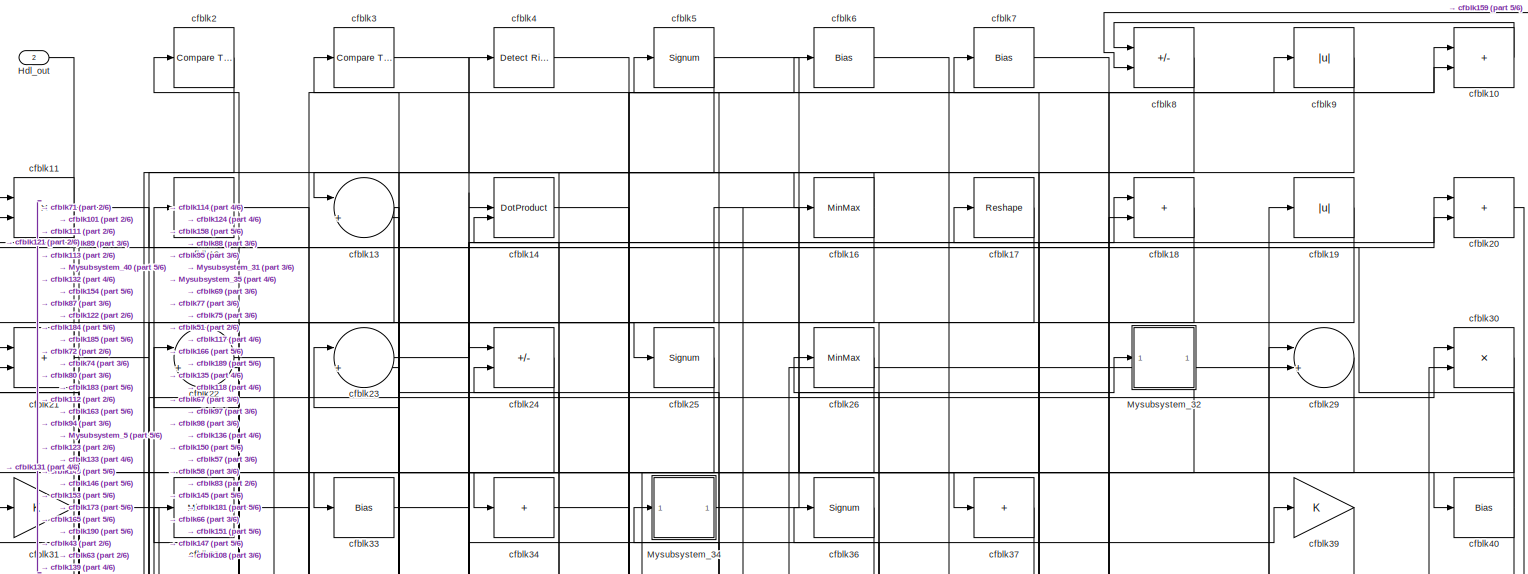
[diagram: root canvas - part 1/6, full width, top band]
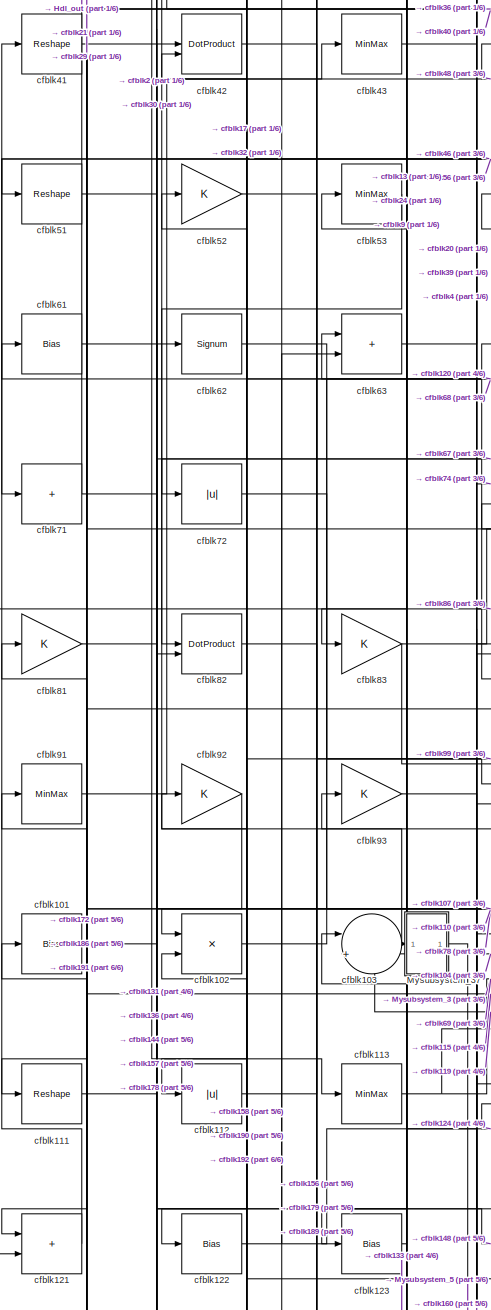
[diagram: root canvas - part 2/6, middle left region]
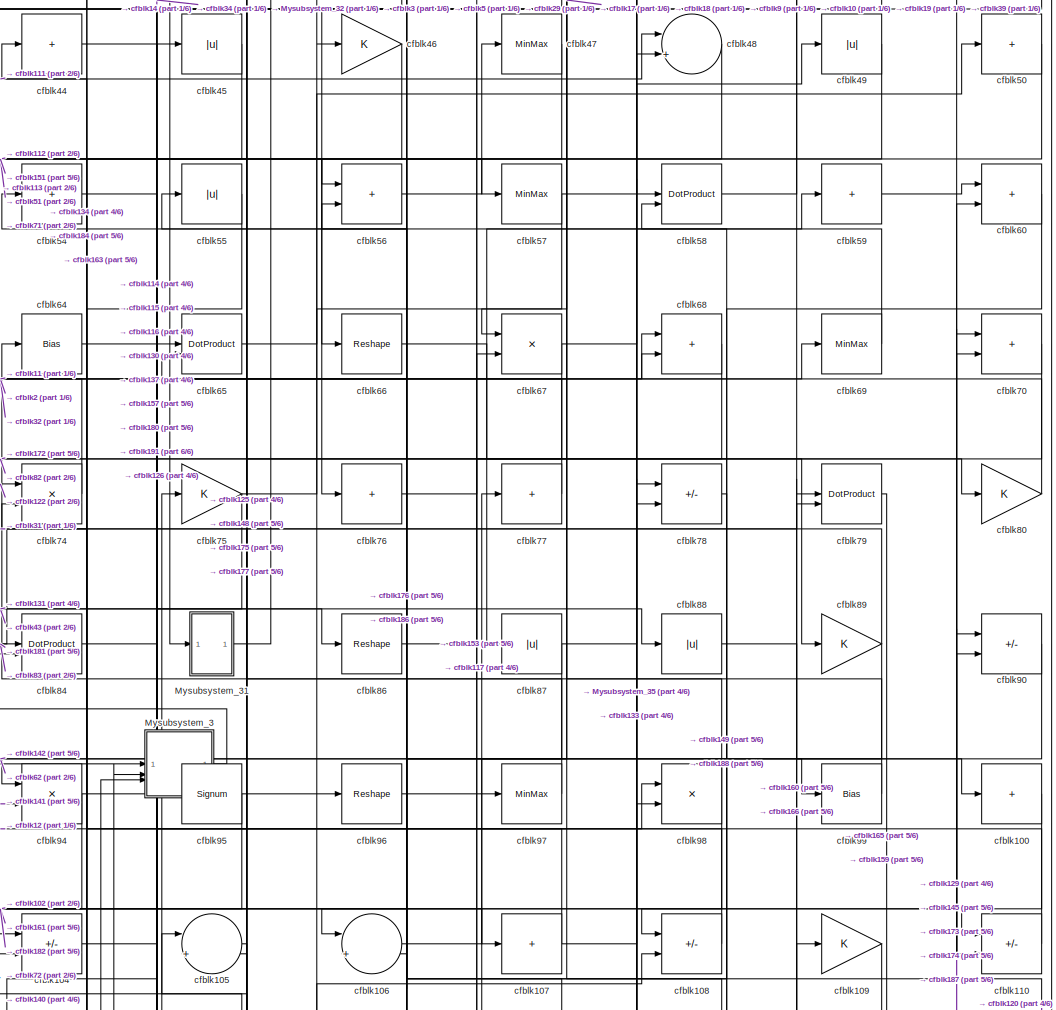
[diagram: root canvas - part 3/6, central region]
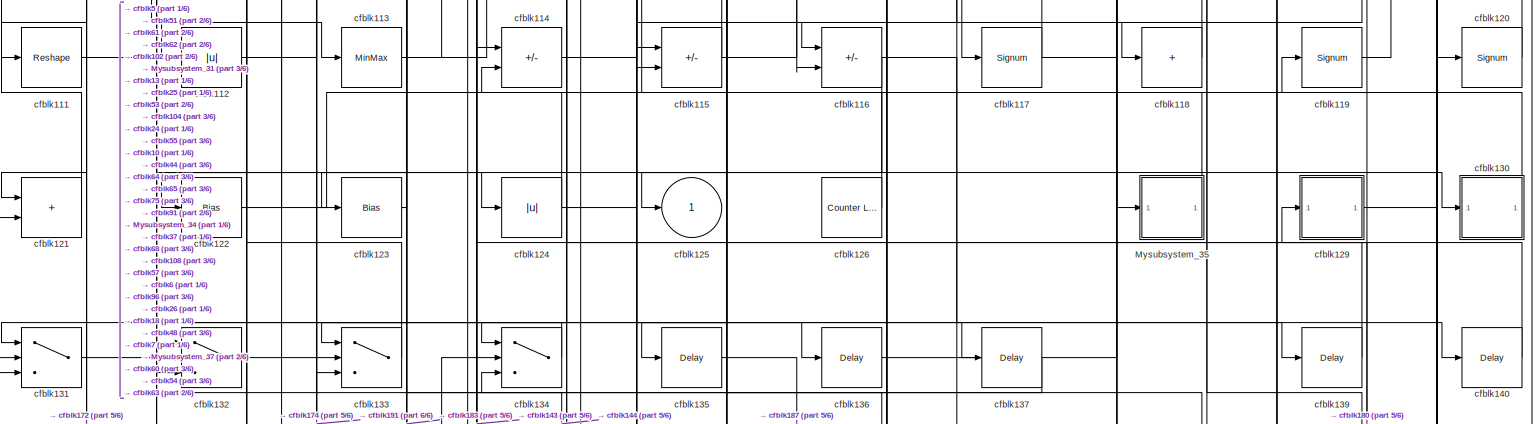
[diagram: root canvas - part 4/6, full width, middle band]
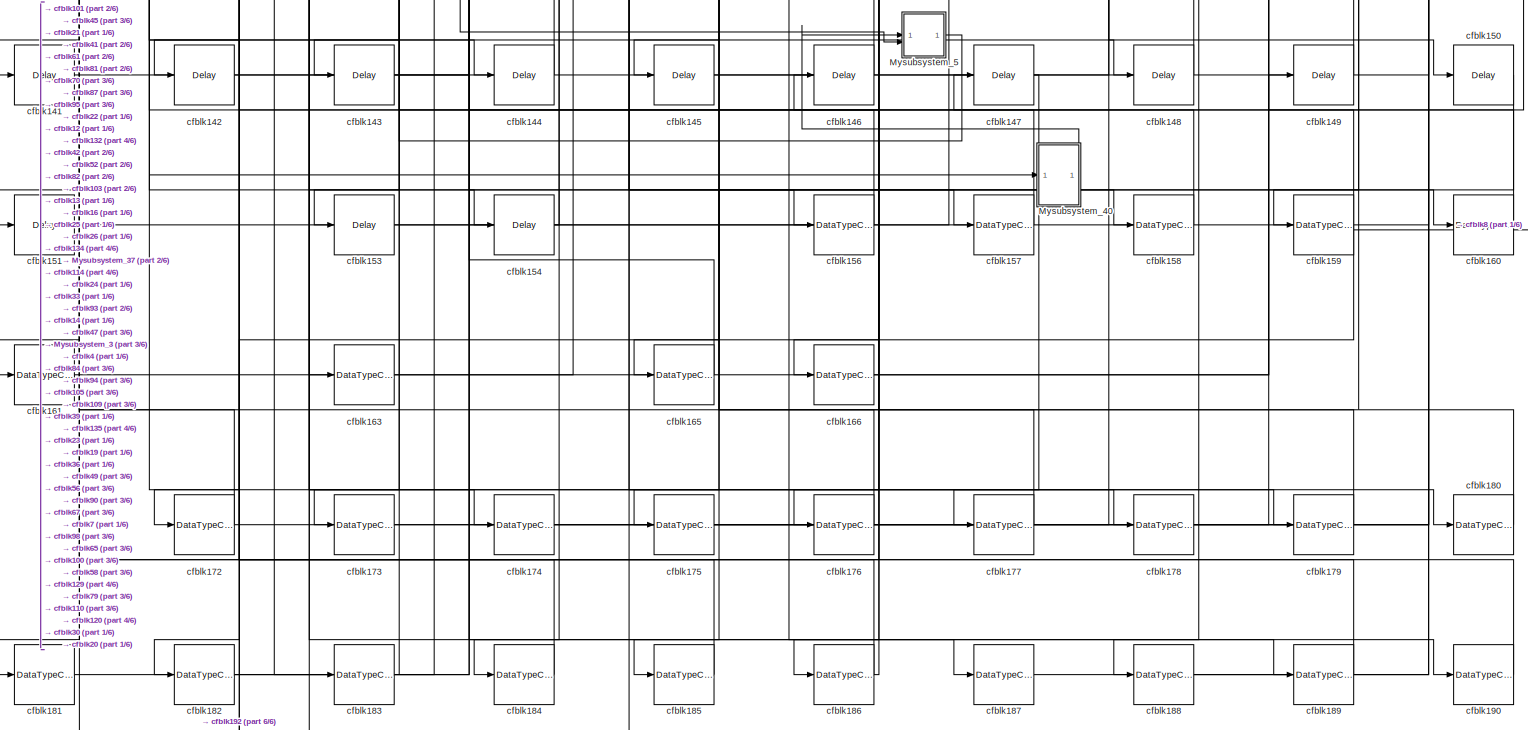
[diagram: root canvas - part 5/6, full width, bottom band]
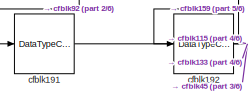
[diagram: root canvas - part 6/6, bottom left region]
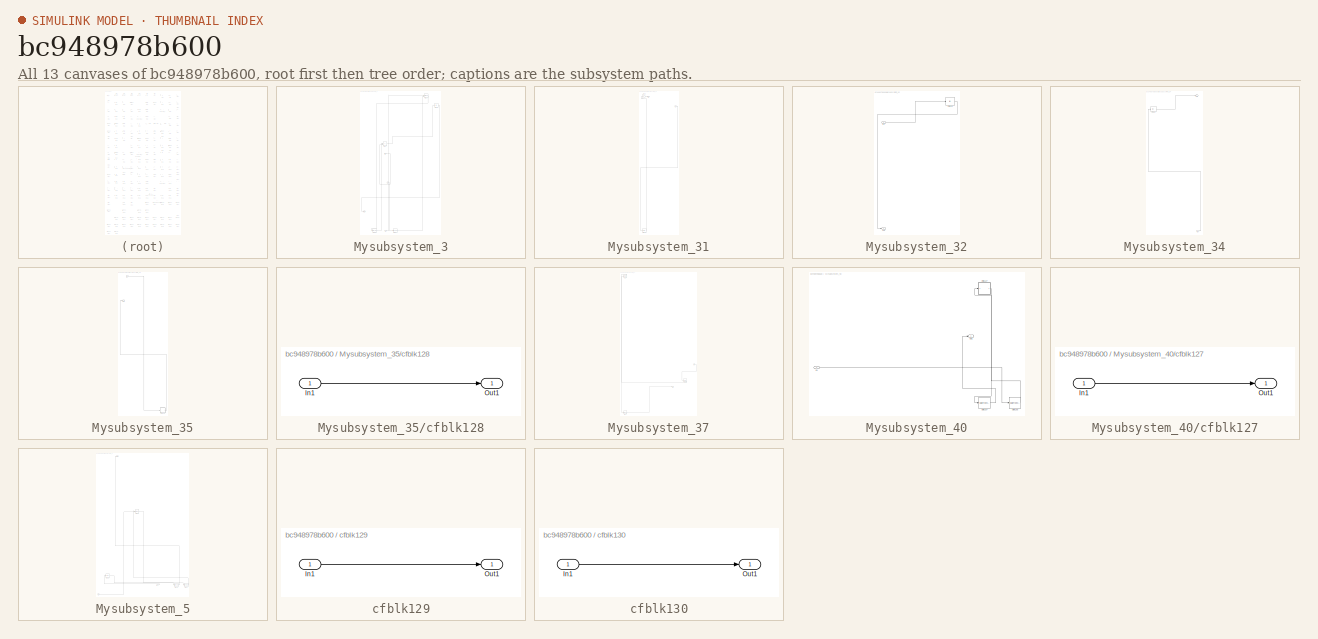
[diagram: thumbnail index - all 13 canvases of the model, root first then tree order]
MODEL slx_bc948978b600
KIND model
CONFIG AbsTol = auto
CONFIG EnableMultiTasking = off
CONFIG FixedStep = auto
CONFIG MaxStep = auto
CONFIG MinStep = auto
CONFIG RelTol = 1e-3
CONFIG SampleTimeConstraint = Unconstrained
CONFIG SolverName = VariableStepAuto
CONFIG StartTime = 0.0
CONFIG StopTime = 10.0
BLOCK [Outport] Hdl_out
  OutDataTypeStr = uint8
  Port = 2
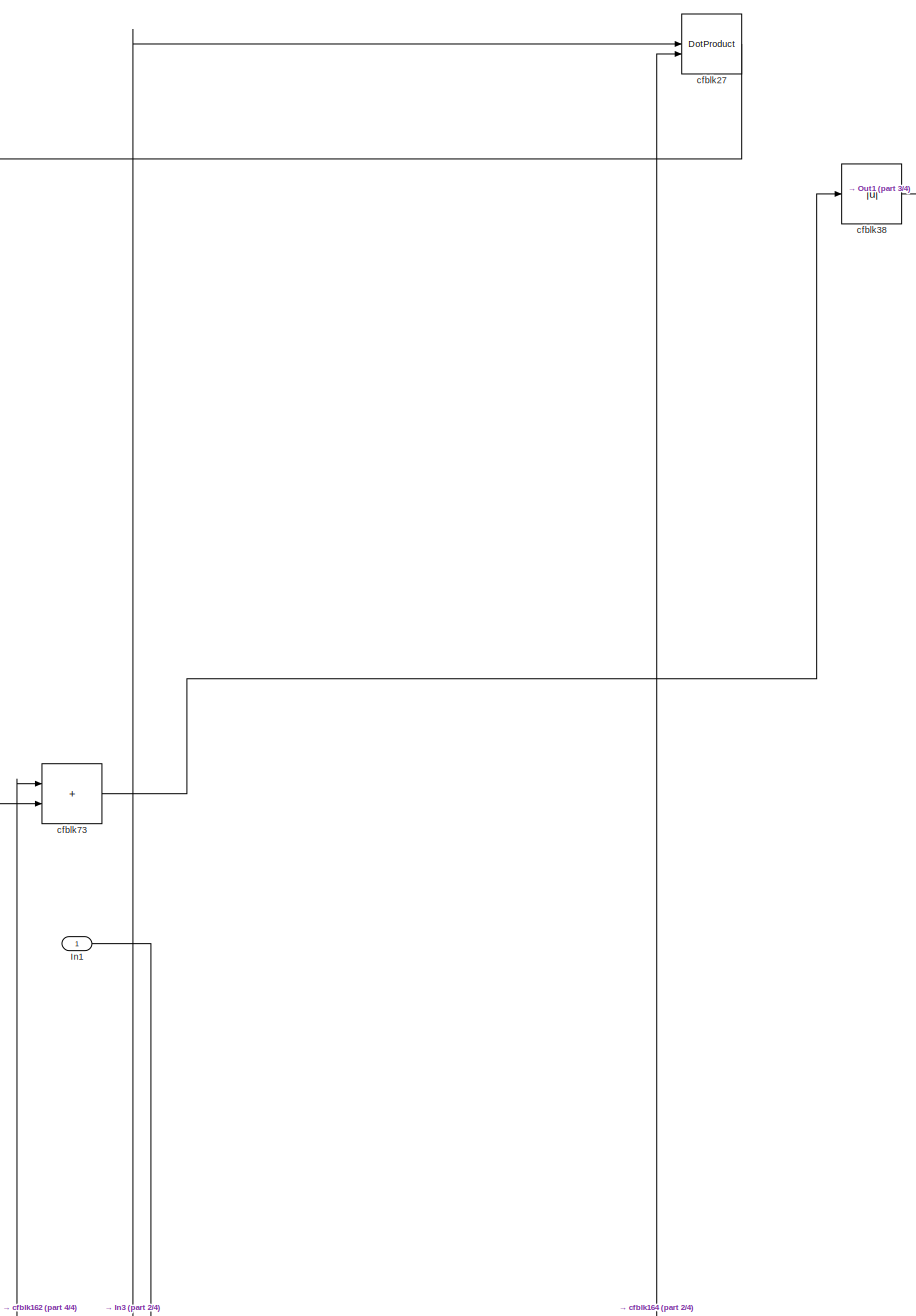
[diagram: Mysubsystem_3 - part 1/4, full width, top band]
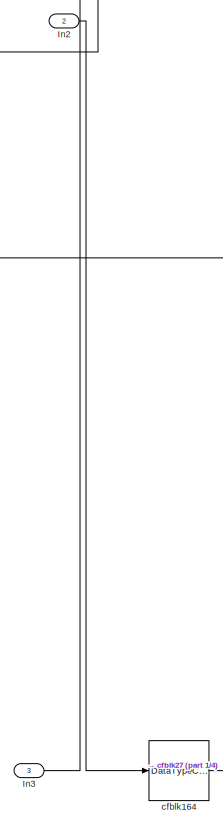
[diagram: Mysubsystem_3 - part 2/4, bottom center region]
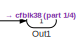
[diagram: Mysubsystem_3 - part 3/4, bottom left region]
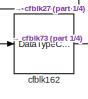
[diagram: Mysubsystem_3 - part 4/4, bottom left region]
BLOCK [SubSystem] Mysubsystem_3
  RTWFcnName = Mysubsystem_3
  RTWFcnNameOpts = User specified
  RTWFileNameOpts = Use function name
  RTWSystemCode = Reusable function
  TreatAsAtomicUnit = on
BLOCK [Inport] Mysubsystem_3/In1
BLOCK [Inport] Mysubsystem_3/In2
  Port = 2
BLOCK [Inport] Mysubsystem_3/In3
  Port = 3
BLOCK [Outport] Mysubsystem_3/Out1
BLOCK [DataTypeConversion] Mysubsystem_3/cfblk162
  OutDataTypeStr = uint8
  RndMeth = Floor
  SaturateOnIntegerOverflow = off
BLOCK [DataTypeConversion] Mysubsystem_3/cfblk164
  OutDataTypeStr = uint8
  RndMeth = Floor
  SaturateOnIntegerOverflow = off
BLOCK [DotProduct] Mysubsystem_3/cfblk27
  OutDataTypeStr = Inherit: Inherit via internal rule
BLOCK [Abs] Mysubsystem_3/cfblk38
  SaturateOnIntegerOverflow = off
BLOCK [Sum] Mysubsystem_3/cfblk73
  IconShape = rectangular
BLOCK [SubSystem] Mysubsystem_31
  RTWFcnName = Mysubsystem_31
  RTWFcnNameOpts = User specified
  RTWFileNameOpts = Use function name
  RTWSystemCode = Reusable function
  TreatAsAtomicUnit = on
BLOCK [Inport] Mysubsystem_31/In1
BLOCK [Outport] Mysubsystem_31/Out1
BLOCK [Gain] Mysubsystem_31/cfblk15
BLOCK [Delay] Mysubsystem_31/cfblk155
  InputPortMap = u0
  SampleTime = 1
BLOCK [SubSystem] Mysubsystem_32
  RTWFcnName = Mysubsystem_32
  RTWFcnNameOpts = User specified
  RTWFileNameOpts = Use function name
  RTWSystemCode = Reusable function
  TreatAsAtomicUnit = on
BLOCK [Inport] Mysubsystem_32/In1
BLOCK [Outport] Mysubsystem_32/Out1
BLOCK [Abs] Mysubsystem_32/cfblk28
  SaturateOnIntegerOverflow = off
BLOCK [SubSystem] Mysubsystem_34
  RTWFcnName = Mysubsystem_34
  RTWFcnNameOpts = User specified
  RTWFileNameOpts = Use function name
  RTWSystemCode = Reusable function
  TreatAsAtomicUnit = on
BLOCK [Inport] Mysubsystem_34/In1
BLOCK [Outport] Mysubsystem_34/Out1
BLOCK [Abs] Mysubsystem_34/cfblk35
  SaturateOnIntegerOverflow = off
BLOCK [SubSystem] Mysubsystem_35
  RTWFcnName = Mysubsystem_35
  RTWFcnNameOpts = User specified
  RTWFileNameOpts = Use function name
  RTWSystemCode = Reusable function
  TreatAsAtomicUnit = on
BLOCK [Inport] Mysubsystem_35/In1
BLOCK [Outport] Mysubsystem_35/Out1
BLOCK [SubSystem] Mysubsystem_35/cfblk128
  LibrarySourceBlock = hdlsllib/Ports &\nSubsystems/Subsystem
BLOCK [Inport] Mysubsystem_35/cfblk128/In1
BLOCK [Outport] Mysubsystem_35/cfblk128/Out1
BLOCK [SubSystem] Mysubsystem_37
  RTWFcnName = Mysubsystem_37
  RTWFcnNameOpts = User specified
  RTWFileNameOpts = Use function name
  RTWSystemCode = Reusable function
  TreatAsAtomicUnit = on
BLOCK [Inport] Mysubsystem_37/In1
BLOCK [Outport] Mysubsystem_37/Out1
BLOCK [Reference] Mysubsystem_37/cfblk1  REF=hdlsllib/Logic and Bit
Operations/Compare
To Zero
  SourceBlock = hdlsllib/Logic and Bit\nOperations/Compare\nTo Zero
  SourceType = Compare To Zero
BLOCK [Delay] Mysubsystem_37/cfblk138
  InputPortMap = u0
  SampleTime = 1
BLOCK [DataTypeConversion] Mysubsystem_37/cfblk171
  OutDataTypeStr = uint8
  RndMeth = Floor
  SaturateOnIntegerOverflow = off
BLOCK [SubSystem] Mysubsystem_40
  RTWFcnName = Mysubsystem_40
  RTWFcnNameOpts = User specified
  RTWFileNameOpts = Use function name
  RTWSystemCode = Reusable function
  TreatAsAtomicUnit = on
BLOCK [Inport] Mysubsystem_40/In1
BLOCK [Outport] Mysubsystem_40/Out1
BLOCK [SubSystem] Mysubsystem_40/cfblk127
  LibrarySourceBlock = hdlsllib/Ports &\nSubsystems/Subsystem
BLOCK [Inport] Mysubsystem_40/cfblk127/In1
BLOCK [Outport] Mysubsystem_40/cfblk127/Out1
BLOCK [DataTypeConversion] Mysubsystem_40/cfblk167
  OutDataTypeStr = uint8
  RndMeth = Floor
  SaturateOnIntegerOverflow = off
BLOCK [DataTypeConversion] Mysubsystem_40/cfblk168
  OutDataTypeStr = uint8
  RndMeth = Floor
  SaturateOnIntegerOverflow = off
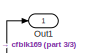
[diagram: Mysubsystem_5 - part 1/3, top left region]
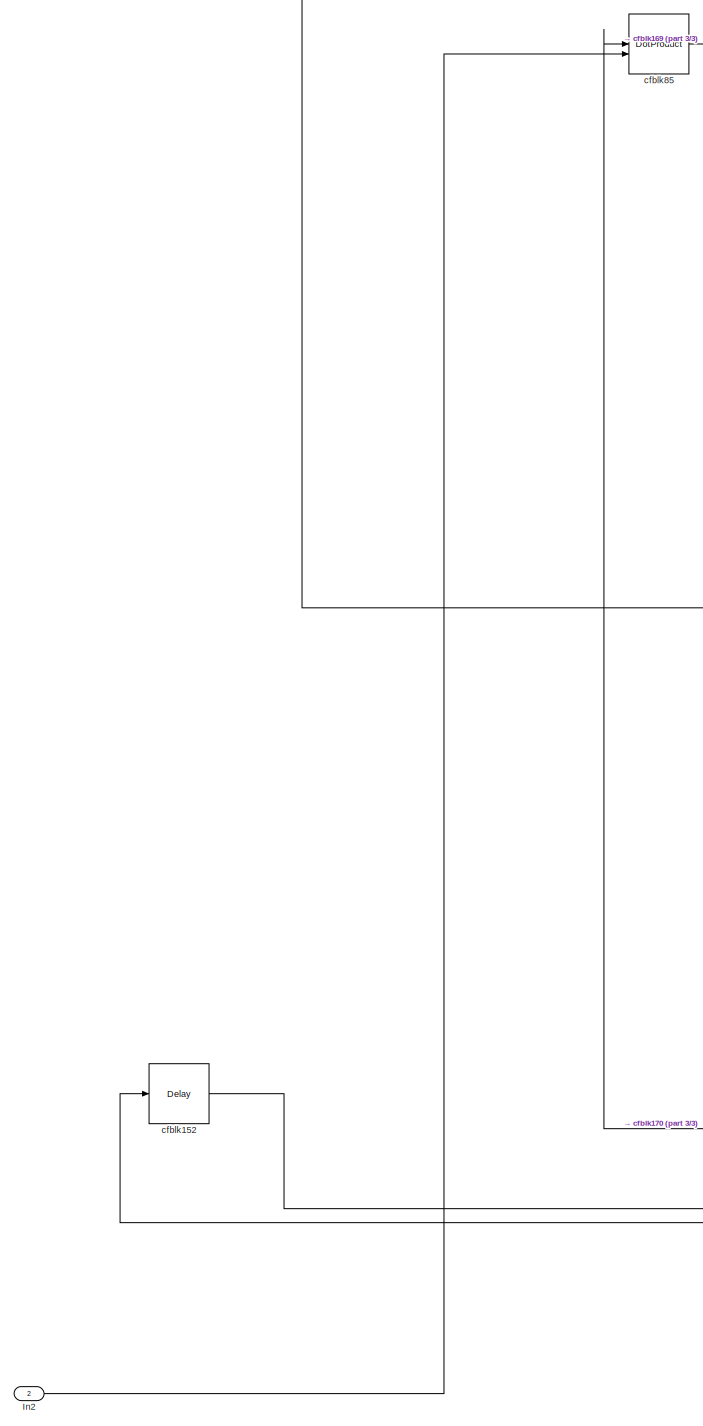
[diagram: Mysubsystem_5 - part 2/3, bottom left region]
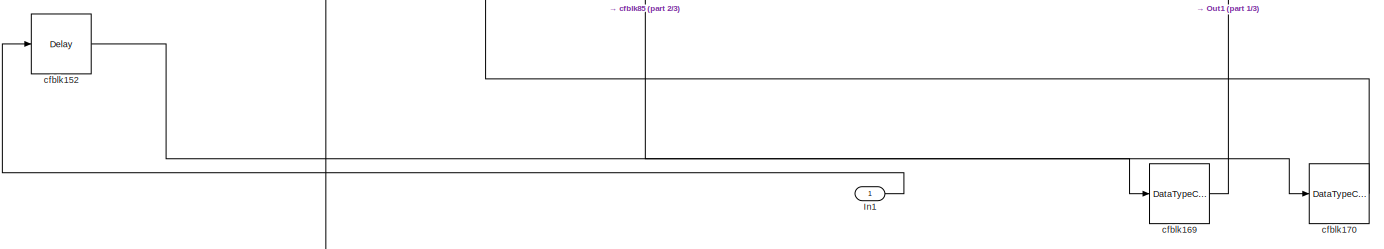
[diagram: Mysubsystem_5 - part 3/3, full width, bottom band]
BLOCK [SubSystem] Mysubsystem_5
  RTWFcnName = Mysubsystem_5
  RTWFcnNameOpts = User specified
  RTWFileNameOpts = Use function name
  RTWSystemCode = Reusable function
  TreatAsAtomicUnit = on
BLOCK [Inport] Mysubsystem_5/In1
BLOCK [Inport] Mysubsystem_5/In2
  Port = 2
BLOCK [Outport] Mysubsystem_5/Out1
BLOCK [Delay] Mysubsystem_5/cfblk152
  InputPortMap = u0
  SampleTime = 1
BLOCK [DataTypeConversion] Mysubsystem_5/cfblk169
  OutDataTypeStr = uint8
  RndMeth = Floor
  SaturateOnIntegerOverflow = off
BLOCK [DataTypeConversion] Mysubsystem_5/cfblk170
  OutDataTypeStr = uint8
  RndMeth = Floor
  SaturateOnIntegerOverflow = off
BLOCK [DotProduct] Mysubsystem_5/cfblk85
  OutDataTypeStr = Inherit: Inherit via internal rule
BLOCK [Sum] cfblk10
  IconShape = rectangular
  OutDataTypeStr = uint8
BLOCK [Sum] cfblk100
  IconShape = rectangular
  Inputs = +
  OutDataTypeStr = uint8
BLOCK [Bias] cfblk101
  Bias = 0.0
  SaturateOnIntegerOverflow = off
BLOCK [Product] cfblk102
  Inputs = */
  OutDataTypeStr = uint8
  RndMeth = Zero
  SaturateOnIntegerOverflow = on
BLOCK [Sum] cfblk103
  Inputs = |++
  OutDataTypeStr = uint8
BLOCK [Sum] cfblk104
  IconShape = rectangular
  Inputs = +-
  OutDataTypeStr = uint8
BLOCK [Sum] cfblk105
  Inputs = |++
  OutDataTypeStr = uint8
BLOCK [Sum] cfblk106
  Inputs = |++
  OutDataTypeStr = uint8
BLOCK [Sum] cfblk107
  IconShape = rectangular
  Inputs = +
  OutDataTypeStr = uint8
BLOCK [Sum] cfblk108
  IconShape = rectangular
  Inputs = +-
  OutDataTypeStr = uint8
BLOCK [Gain] cfblk109
  OutDataTypeStr = uint8
BLOCK [Product] cfblk11
  Inputs = */
  OutDataTypeStr = uint8
  RndMeth = Zero
  SaturateOnIntegerOverflow = on
BLOCK [Sum] cfblk110
  IconShape = rectangular
  Inputs = +-
  OutDataTypeStr = uint8
BLOCK [Reshape] cfblk111
BLOCK [Abs] cfblk112
  OutDataTypeStr = uint8
  SaturateOnIntegerOverflow = off
BLOCK [MinMax] cfblk113
  OutDataTypeStr = uint8
BLOCK [Sum] cfblk114
  IconShape = rectangular
  Inputs = +-
  OutDataTypeStr = uint8
BLOCK [Sum] cfblk115
  IconShape = rectangular
  Inputs = +-
  OutDataTypeStr = uint8
BLOCK [Sum] cfblk116
  IconShape = rectangular
  Inputs = +-
  OutDataTypeStr = uint8
BLOCK [Signum] cfblk117
BLOCK [Sum] cfblk118
  IconShape = rectangular
  Inputs = +
  OutDataTypeStr = uint8
BLOCK [Signum] cfblk119
BLOCK [Bias] cfblk12
  Bias = 0.0
  SaturateOnIntegerOverflow = off
BLOCK [Signum] cfblk120
BLOCK [Sum] cfblk121
  IconShape = rectangular
  OutDataTypeStr = uint8
BLOCK [Bias] cfblk122
  Bias = 0.0
  SaturateOnIntegerOverflow = off
BLOCK [Bias] cfblk123
  Bias = 0.0
  SaturateOnIntegerOverflow = off
BLOCK [Abs] cfblk124
  OutDataTypeStr = uint8
  SaturateOnIntegerOverflow = off
BLOCK [Outport] cfblk125
  OutDataTypeStr = uint8
  VectorParamsAs1DForOutWhenUnconnected = off
BLOCK [Reference] cfblk126  REF=hdlsllib/Sources/Counter
Limited
  SourceBlock = hdlsllib/Sources/Counter\nLimited
  SourceType = Counter Limited
BLOCK [SubSystem] cfblk129
  LibrarySourceBlock = hdlsllib/Ports &\nSubsystems/Subsystem
BLOCK [Inport] cfblk129/In1
BLOCK [Outport] cfblk129/Out1
BLOCK [Sum] cfblk13
  Inputs = |++
  OutDataTypeStr = uint8
BLOCK [SubSystem] cfblk130
  LibrarySourceBlock = hdlsllib/Ports &\nSubsystems/Subsystem
BLOCK [Inport] cfblk130/In1
BLOCK [Outport] cfblk130/Out1
BLOCK [Switch] cfblk131
  InputSameDT = off
  OutDataTypeStr = uint8
  SaturateOnIntegerOverflow = off
BLOCK [Switch] cfblk132
  InputSameDT = off
  OutDataTypeStr = uint8
  SaturateOnIntegerOverflow = off
BLOCK [Switch] cfblk133
  InputSameDT = off
  OutDataTypeStr = uint8
  SaturateOnIntegerOverflow = off
BLOCK [Switch] cfblk134
  InputSameDT = off
  OutDataTypeStr = uint8
  SaturateOnIntegerOverflow = off
BLOCK [Delay] cfblk135
  InputPortMap = u0
  SampleTime = 1
BLOCK [Delay] cfblk136
  InputPortMap = u0
  SampleTime = 1
BLOCK [Delay] cfblk137
  InputPortMap = u0
  SampleTime = 1
BLOCK [Delay] cfblk139
  InputPortMap = u0
  SampleTime = 1
BLOCK [DotProduct] cfblk14
  OutDataTypeStr = uint8
BLOCK [Delay] cfblk140
  InputPortMap = u0
  SampleTime = 1
BLOCK [Delay] cfblk141
  InputPortMap = u0
  SampleTime = 1
BLOCK [Delay] cfblk142
  InputPortMap = u0
  SampleTime = 1
BLOCK [Delay] cfblk143
  InputPortMap = u0
  SampleTime = 1
BLOCK [Delay] cfblk144
  InputPortMap = u0
  SampleTime = 1
BLOCK [Delay] cfblk145
  InputPortMap = u0
  SampleTime = 1
BLOCK [Delay] cfblk146
  InputPortMap = u0
  SampleTime = 1
BLOCK [Delay] cfblk147
  InputPortMap = u0
  SampleTime = 1
BLOCK [Delay] cfblk148
  InputPortMap = u0
  SampleTime = 1
BLOCK [Delay] cfblk149
  InputPortMap = u0
  SampleTime = 1
BLOCK [Delay] cfblk150
  InputPortMap = u0
  SampleTime = 1
BLOCK [Delay] cfblk151
  InputPortMap = u0
  SampleTime = 1
BLOCK [Delay] cfblk153
  InputPortMap = u0
  SampleTime = 1
BLOCK [Delay] cfblk154
  InputPortMap = u0
  SampleTime = 1
BLOCK [DataTypeConversion] cfblk156
  OutDataTypeStr = uint8
  RndMeth = Floor
  SaturateOnIntegerOverflow = off
BLOCK [DataTypeConversion] cfblk157
  OutDataTypeStr = uint8
  RndMeth = Floor
  SaturateOnIntegerOverflow = off
BLOCK [DataTypeConversion] cfblk158
  OutDataTypeStr = uint8
  RndMeth = Floor
  SaturateOnIntegerOverflow = off
BLOCK [DataTypeConversion] cfblk159
  OutDataTypeStr = uint8
  RndMeth = Floor
  SaturateOnIntegerOverflow = off
BLOCK [MinMax] cfblk16
  OutDataTypeStr = uint8
BLOCK [DataTypeConversion] cfblk160
  OutDataTypeStr = uint8
  RndMeth = Floor
  SaturateOnIntegerOverflow = off
BLOCK [DataTypeConversion] cfblk161
  OutDataTypeStr = uint8
  RndMeth = Floor
  SaturateOnIntegerOverflow = off
BLOCK [DataTypeConversion] cfblk163
  OutDataTypeStr = uint8
  RndMeth = Floor
  SaturateOnIntegerOverflow = off
BLOCK [DataTypeConversion] cfblk165
  OutDataTypeStr = uint8
  RndMeth = Floor
  SaturateOnIntegerOverflow = off
BLOCK [DataTypeConversion] cfblk166
  OutDataTypeStr = uint8
  RndMeth = Floor
  SaturateOnIntegerOverflow = off
BLOCK [Reshape] cfblk17
BLOCK [DataTypeConversion] cfblk172
  OutDataTypeStr = uint8
  RndMeth = Floor
  SaturateOnIntegerOverflow = off
BLOCK [DataTypeConversion] cfblk173
  OutDataTypeStr = uint8
  RndMeth = Floor
  SaturateOnIntegerOverflow = off
BLOCK [DataTypeConversion] cfblk174
  OutDataTypeStr = uint8
  RndMeth = Floor
  SaturateOnIntegerOverflow = off
BLOCK [DataTypeConversion] cfblk175
  OutDataTypeStr = uint8
  RndMeth = Floor
  SaturateOnIntegerOverflow = off
BLOCK [DataTypeConversion] cfblk176
  OutDataTypeStr = uint8
  RndMeth = Floor
  SaturateOnIntegerOverflow = off
BLOCK [DataTypeConversion] cfblk177
  OutDataTypeStr = uint8
  RndMeth = Floor
  SaturateOnIntegerOverflow = off
BLOCK [DataTypeConversion] cfblk178
  OutDataTypeStr = uint8
  RndMeth = Floor
  SaturateOnIntegerOverflow = off
BLOCK [DataTypeConversion] cfblk179
  OutDataTypeStr = uint8
  RndMeth = Floor
  SaturateOnIntegerOverflow = off
BLOCK [Sum] cfblk18
  IconShape = rectangular
  OutDataTypeStr = uint8
BLOCK [DataTypeConversion] cfblk180
  OutDataTypeStr = uint8
  RndMeth = Floor
  SaturateOnIntegerOverflow = off
BLOCK [DataTypeConversion] cfblk181
  OutDataTypeStr = uint8
  RndMeth = Floor
  SaturateOnIntegerOverflow = off
BLOCK [DataTypeConversion] cfblk182
  OutDataTypeStr = uint8
  RndMeth = Floor
  SaturateOnIntegerOverflow = off
BLOCK [DataTypeConversion] cfblk183
  OutDataTypeStr = uint8
  RndMeth = Floor
  SaturateOnIntegerOverflow = off
BLOCK [DataTypeConversion] cfblk184
  OutDataTypeStr = uint8
  RndMeth = Floor
  SaturateOnIntegerOverflow = off
BLOCK [DataTypeConversion] cfblk185
  OutDataTypeStr = uint8
  RndMeth = Floor
  SaturateOnIntegerOverflow = off
BLOCK [DataTypeConversion] cfblk186
  OutDataTypeStr = uint8
  RndMeth = Floor
  SaturateOnIntegerOverflow = off
BLOCK [DataTypeConversion] cfblk187
  OutDataTypeStr = uint8
  RndMeth = Floor
  SaturateOnIntegerOverflow = off
BLOCK [DataTypeConversion] cfblk188
  OutDataTypeStr = uint8
  RndMeth = Floor
  SaturateOnIntegerOverflow = off
BLOCK [DataTypeConversion] cfblk189
  OutDataTypeStr = uint8
  RndMeth = Floor
  SaturateOnIntegerOverflow = off
BLOCK [Abs] cfblk19
  OutDataTypeStr = uint8
  SaturateOnIntegerOverflow = off
BLOCK [DataTypeConversion] cfblk190
  OutDataTypeStr = uint8
  RndMeth = Floor
  SaturateOnIntegerOverflow = off
BLOCK [DataTypeConversion] cfblk191
  OutDataTypeStr = uint8
  RndMeth = Floor
  SaturateOnIntegerOverflow = off
BLOCK [DataTypeConversion] cfblk192
  OutDataTypeStr = uint8
  RndMeth = Floor
  SaturateOnIntegerOverflow = off
BLOCK [Reference] cfblk2  REF=hdlsllib/Logic and Bit
Operations/Compare
To Zero
  SourceBlock = hdlsllib/Logic and Bit\nOperations/Compare\nTo Zero
  SourceType = Compare To Zero
BLOCK [Sum] cfblk20
  IconShape = rectangular
  OutDataTypeStr = uint8
BLOCK [Sum] cfblk21
  IconShape = rectangular
  OutDataTypeStr = uint8
BLOCK [Sum] cfblk22
  Inputs = |++
  OutDataTypeStr = uint8
BLOCK [Sum] cfblk23
  Inputs = |++
  OutDataTypeStr = uint8
BLOCK [Sum] cfblk24
  IconShape = rectangular
  Inputs = +-
  OutDataTypeStr = uint8
BLOCK [Signum] cfblk25
BLOCK [MinMax] cfblk26
  OutDataTypeStr = uint8
BLOCK [Sum] cfblk29
  Inputs = |++
  OutDataTypeStr = uint8
BLOCK [Reference] cfblk3  REF=hdlsllib/Logic and Bit
Operations/Compare
To Zero
  SourceBlock = hdlsllib/Logic and Bit\nOperations/Compare\nTo Zero
  SourceType = Compare To Zero
BLOCK [Product] cfblk30
  Inputs = */
  OutDataTypeStr = uint8
  RndMeth = Zero
  SaturateOnIntegerOverflow = on
BLOCK [Gain] cfblk31
  OutDataTypeStr = uint8
BLOCK [MinMax] cfblk32
  OutDataTypeStr = uint8
BLOCK [Bias] cfblk33
  Bias = 0.0
  SaturateOnIntegerOverflow = off
BLOCK [Sum] cfblk34
  IconShape = rectangular
  Inputs = +
  OutDataTypeStr = uint8
BLOCK [Signum] cfblk36
BLOCK [Sum] cfblk37
  IconShape = rectangular
  Inputs = +
  OutDataTypeStr = uint8
BLOCK [Gain] cfblk39
  OutDataTypeStr = uint8
BLOCK [Reference] cfblk4  REF=hdlsllib/Logic and Bit
Operations/Detect Rise
Positive
  SourceBlock = hdlsllib/Logic and Bit\nOperations/Detect Rise\nPositive
  SourceType = Detect Rise Positive
BLOCK [Bias] cfblk40
  Bias = 0.0
  SaturateOnIntegerOverflow = off
BLOCK [Reshape] cfblk41
BLOCK [DotProduct] cfblk42
  OutDataTypeStr = uint8
BLOCK [MinMax] cfblk43
  OutDataTypeStr = uint8
BLOCK [Sum] cfblk44
  IconShape = rectangular
  Inputs = +
  OutDataTypeStr = uint8
BLOCK [Abs] cfblk45
  OutDataTypeStr = uint8
  SaturateOnIntegerOverflow = off
BLOCK [Gain] cfblk46
  OutDataTypeStr = uint8
BLOCK [MinMax] cfblk47
  OutDataTypeStr = uint8
BLOCK [Sum] cfblk48
  Inputs = |++
  OutDataTypeStr = uint8
BLOCK [Abs] cfblk49
  OutDataTypeStr = uint8
  SaturateOnIntegerOverflow = off
BLOCK [Signum] cfblk5
BLOCK [Sum] cfblk50
  IconShape = rectangular
  Inputs = +
  OutDataTypeStr = uint8
BLOCK [Reshape] cfblk51
BLOCK [Gain] cfblk52
  OutDataTypeStr = uint8
BLOCK [MinMax] cfblk53
  OutDataTypeStr = uint8
BLOCK [Sum] cfblk54
  IconShape = rectangular
  Inputs = +
  OutDataTypeStr = uint8
BLOCK [Abs] cfblk55
  OutDataTypeStr = uint8
  SaturateOnIntegerOverflow = off
BLOCK [Sum] cfblk56
  IconShape = rectangular
  OutDataTypeStr = uint8
BLOCK [MinMax] cfblk57
  OutDataTypeStr = uint8
BLOCK [DotProduct] cfblk58
  OutDataTypeStr = uint8
BLOCK [Sum] cfblk59
  IconShape = rectangular
  Inputs = +
  OutDataTypeStr = uint8
BLOCK [Bias] cfblk6
  Bias = 0.0
  SaturateOnIntegerOverflow = off
BLOCK [Sum] cfblk60
  IconShape = rectangular
  OutDataTypeStr = uint8
BLOCK [Bias] cfblk61
  Bias = 0.0
  SaturateOnIntegerOverflow = off
BLOCK [Signum] cfblk62
BLOCK [Sum] cfblk63
  IconShape = rectangular
  OutDataTypeStr = uint8
BLOCK [Bias] cfblk64
  Bias = 0.0
  SaturateOnIntegerOverflow = off
BLOCK [DotProduct] cfblk65
  OutDataTypeStr = uint8
BLOCK [Reshape] cfblk66
BLOCK [Product] cfblk67
  Inputs = */
  OutDataTypeStr = uint8
  RndMeth = Zero
  SaturateOnIntegerOverflow = on
BLOCK [Sum] cfblk68
  IconShape = rectangular
  OutDataTypeStr = uint8
BLOCK [MinMax] cfblk69
  OutDataTypeStr = uint8
BLOCK [Bias] cfblk7
  Bias = 0.0
  SaturateOnIntegerOverflow = off
BLOCK [Sum] cfblk70
  IconShape = rectangular
  OutDataTypeStr = uint8
BLOCK [Sum] cfblk71
  IconShape = rectangular
  Inputs = +
  OutDataTypeStr = uint8
BLOCK [Abs] cfblk72
  OutDataTypeStr = uint8
  SaturateOnIntegerOverflow = off
BLOCK [Product] cfblk74
  Inputs = */
  OutDataTypeStr = uint8
  RndMeth = Zero
  SaturateOnIntegerOverflow = on
BLOCK [Gain] cfblk75
  OutDataTypeStr = uint8
BLOCK [Sum] cfblk76
  IconShape = rectangular
  Inputs = +
  OutDataTypeStr = uint8
BLOCK [Sum] cfblk77
  IconShape = rectangular
  Inputs = +
  OutDataTypeStr = uint8
BLOCK [Sum] cfblk78
  IconShape = rectangular
  Inputs = +-
  OutDataTypeStr = uint8
BLOCK [DotProduct] cfblk79
  OutDataTypeStr = uint8
BLOCK [Sum] cfblk8
  IconShape = rectangular
  Inputs = +-
  OutDataTypeStr = uint8
BLOCK [Gain] cfblk80
  OutDataTypeStr = uint8
BLOCK [Gain] cfblk81
  OutDataTypeStr = uint8
BLOCK [DotProduct] cfblk82
  OutDataTypeStr = uint8
BLOCK [Gain] cfblk83
  OutDataTypeStr = uint8
BLOCK [DotProduct] cfblk84
  OutDataTypeStr = uint8
BLOCK [Reshape] cfblk86
BLOCK [Abs] cfblk87
  OutDataTypeStr = uint8
  SaturateOnIntegerOverflow = off
BLOCK [Abs] cfblk88
  OutDataTypeStr = uint8
  SaturateOnIntegerOverflow = off
BLOCK [Gain] cfblk89
  OutDataTypeStr = uint8
BLOCK [Abs] cfblk9
  OutDataTypeStr = uint8
  SaturateOnIntegerOverflow = off
BLOCK [Sum] cfblk90
  IconShape = rectangular
  Inputs = +-
  OutDataTypeStr = uint8
BLOCK [MinMax] cfblk91
  OutDataTypeStr = uint8
BLOCK [Gain] cfblk92
  OutDataTypeStr = uint8
BLOCK [Gain] cfblk93
  OutDataTypeStr = uint8
BLOCK [Product] cfblk94
  Inputs = */
  OutDataTypeStr = uint8
  RndMeth = Zero
  SaturateOnIntegerOverflow = on
BLOCK [Signum] cfblk95
BLOCK [Reshape] cfblk96
BLOCK [MinMax] cfblk97
  OutDataTypeStr = uint8
BLOCK [Product] cfblk98
  Inputs = */
  OutDataTypeStr = uint8
  RndMeth = Zero
  SaturateOnIntegerOverflow = on
BLOCK [Bias] cfblk99
  Bias = 0.0
  SaturateOnIntegerOverflow = off
LINE Mysubsystem_3/In1:1 -> Mysubsystem_3/cfblk73:2
LINE Mysubsystem_3/In2:1 -> Mysubsystem_3/cfblk164:1
LINE Mysubsystem_3/In3:1 -> Mysubsystem_3/cfblk27:1
LINE Mysubsystem_3/cfblk162:1 -> Mysubsystem_3/cfblk73:1
LINE Mysubsystem_3/cfblk164:1 -> Mysubsystem_3/cfblk27:2
LINE Mysubsystem_3/cfblk27:1 -> Mysubsystem_3/cfblk162:1
LINE Mysubsystem_3/cfblk38:1 -> Mysubsystem_3/Out1:1
LINE Mysubsystem_3/cfblk73:1 -> Mysubsystem_3/cfblk38:1
LINE Mysubsystem_31/In1:1 -> Mysubsystem_31/cfblk155:1
LINE Mysubsystem_31/cfblk155:1 -> Mysubsystem_31/cfblk15:1
LINE Mysubsystem_31/cfblk15:1 -> Mysubsystem_31/Out1:1
NET Mysubsystem_31:1 -> Mysubsystem_35:1, cfblk133:2
LINE Mysubsystem_32/In1:1 -> Mysubsystem_32/cfblk28:1
LINE Mysubsystem_32/cfblk28:1 -> Mysubsystem_32/Out1:1
LINE Mysubsystem_32:1 -> Mysubsystem_31:1
LINE Mysubsystem_34/In1:1 -> Mysubsystem_34/cfblk35:1
LINE Mysubsystem_34/cfblk35:1 -> Mysubsystem_34/Out1:1
LINE Mysubsystem_34:1 -> Mysubsystem_32:1
LINE Mysubsystem_35/In1:1 -> Mysubsystem_35/cfblk128:1
LINE Mysubsystem_35/cfblk128/In1:1 -> Mysubsystem_35/cfblk128/Out1:1
LINE Mysubsystem_35/cfblk128:1 -> Mysubsystem_35/Out1:1
LINE Mysubsystem_35:1 -> Mysubsystem_34:1
LINE Mysubsystem_37/In1:1 -> Mysubsystem_37/cfblk138:1
LINE Mysubsystem_37/cfblk138:1 -> Mysubsystem_37/cfblk1:1
LINE Mysubsystem_37/cfblk171:1 -> Mysubsystem_37/Out1:1
LINE Mysubsystem_37/cfblk1:1 -> Mysubsystem_37/cfblk171:1
LINE Mysubsystem_37:1 -> Mysubsystem_5:2
LINE Mysubsystem_3:1 -> cfblk141:1
LINE Mysubsystem_40/In1:1 -> Mysubsystem_40/cfblk168:1
LINE Mysubsystem_40/cfblk127/In1:1 -> Mysubsystem_40/cfblk127/Out1:1
LINE Mysubsystem_40/cfblk127:1 -> Mysubsystem_40/cfblk167:1
LINE Mysubsystem_40/cfblk167:1 -> Mysubsystem_40/Out1:1
LINE Mysubsystem_40/cfblk168:1 -> Mysubsystem_40/cfblk127:1
LINE Mysubsystem_40:1 -> Mysubsystem_5:1
LINE Mysubsystem_5/In1:1 -> Mysubsystem_5/cfblk152:1
LINE Mysubsystem_5/In2:1 -> Mysubsystem_5/cfblk85:2
LINE Mysubsystem_5/cfblk152:1 -> Mysubsystem_5/cfblk170:1
LINE Mysubsystem_5/cfblk169:1 -> Mysubsystem_5/Out1:1
LINE Mysubsystem_5/cfblk170:1 -> Mysubsystem_5/cfblk85:1
LINE Mysubsystem_5/cfblk85:1 -> Mysubsystem_5/cfblk169:1
LINE Mysubsystem_5:1 -> cfblk23:1
LINE cfblk100:1 -> cfblk188:1
NET cfblk101:1 -> cfblk21:1, cfblk30:1
LINE cfblk102:1 -> cfblk68:1
LINE cfblk103:1 -> cfblk93:1
LINE cfblk104:1 -> cfblk98:1
LINE cfblk105:1 -> cfblk175:1
LINE cfblk106:1 -> cfblk77:1
NET cfblk107:1 -> cfblk74:2, cfblk78:1
LINE cfblk108:1 -> cfblk12:1
LINE cfblk109:1 -> cfblk165:1
LINE cfblk10:1 -> cfblk8:1
LINE cfblk110:1 -> cfblk44:1
LINE cfblk111:1 -> cfblk48:1
LINE cfblk112:1 -> cfblk9:1
NET cfblk113:1 -> Mysubsystem_3:2, cfblk69:1
NET cfblk114:1 -> cfblk10:1, cfblk65:1
NET cfblk115:1 -> cfblk108:2, cfblk91:1
NET cfblk116:1 -> cfblk132:2, cfblk139:1
NET cfblk117:1 -> cfblk26:1, cfblk48:2
LINE cfblk118:1 -> cfblk7:1
LINE cfblk119:1 -> Mysubsystem_37:1
LINE cfblk11:1 -> cfblk20:2
NET cfblk120:1 -> cfblk54:1, cfblk63:1
LINE cfblk121:1 -> cfblk41:1
NET cfblk122:1 -> cfblk4:1, cfblk63:2, cfblk74:1
LINE cfblk123:1 -> cfblk103:1
NET cfblk124:1 -> cfblk53:1, cfblk6:1
LINE cfblk126:1 -> cfblk75:1
LINE cfblk129/In1:1 -> cfblk129/Out1:1
LINE cfblk129:1 -> cfblk60:2
LINE cfblk12:1 -> cfblk163:1
LINE cfblk130/In1:1 -> cfblk130/Out1:1
NET cfblk130:1 -> cfblk114:2, cfblk119:1
LINE cfblk131:1 -> cfblk62:1
NET cfblk132:1 -> cfblk140:1, cfblk174:1
LINE cfblk133:1 -> cfblk102:2
LINE cfblk134:1 -> cfblk131:1
LINE cfblk135:1 -> cfblk187:1
LINE cfblk136:1 -> cfblk18:2
LINE cfblk137:1 -> cfblk134:3
LINE cfblk139:1 -> cfblk24:2
NET cfblk13:1 -> cfblk121:2, cfblk133:1
LINE cfblk140:1 -> cfblk104:1
LINE cfblk141:1 -> cfblk94:2
LINE cfblk142:1 -> cfblk98:2
LINE cfblk143:1 -> cfblk114:1
LINE cfblk144:1 -> cfblk132:1
LINE cfblk145:1 -> cfblk110:2
LINE cfblk146:1 -> cfblk23:2
LINE cfblk147:1 -> cfblk177:1
LINE cfblk148:1 -> cfblk65:2
LINE cfblk149:1 -> cfblk58:2
LINE cfblk14:1 -> cfblk88:1
LINE cfblk150:1 -> cfblk185:1
LINE cfblk151:1 -> cfblk30:2
LINE cfblk153:1 -> cfblk67:2
LINE cfblk154:1 -> cfblk14:2
LINE cfblk156:1 -> cfblk103:2
LINE cfblk157:1 -> cfblk42:1
LINE cfblk158:1 -> cfblk42:2
NET cfblk159:1 -> cfblk192:1, cfblk24:1, cfblk8:2
LINE cfblk160:1 -> cfblk79:1
LINE cfblk161:1 -> cfblk79:2
LINE cfblk163:1 -> Mysubsystem_3:3
LINE cfblk165:1 -> cfblk14:1
LINE cfblk166:1 -> cfblk109:1
NET cfblk16:1 -> cfblk13:1, cfblk143:1
NET cfblk172:1 -> cfblk120:1, cfblk61:1
LINE cfblk173:1 -> cfblk70:1
LINE cfblk174:1 -> cfblk70:2
LINE cfblk175:1 -> cfblk58:1
LINE cfblk176:1 -> cfblk105:1
LINE cfblk177:1 -> cfblk105:2
LINE cfblk178:1 -> cfblk149:1
LINE cfblk179:1 -> cfblk81:1
LINE cfblk17:1 -> cfblk72:1
NET cfblk180:1 -> cfblk129:1, cfblk146:1
LINE cfblk181:1 -> cfblk84:1
LINE cfblk182:1 -> cfblk84:2
NET cfblk183:1 -> cfblk134:2, cfblk13:2
LINE cfblk184:1 -> cfblk22:1
LINE cfblk185:1 -> cfblk22:2
NET cfblk186:1 -> cfblk101:1, cfblk56:2
LINE cfblk187:1 -> cfblk90:1
LINE cfblk188:1 -> cfblk90:2
NET cfblk189:1 -> cfblk21:2, cfblk36:1
LINE cfblk18:1 -> cfblk67:1
LINE cfblk190:1 -> cfblk52:1
NET cfblk191:1 -> cfblk115:2, cfblk133:3, cfblk45:1
LINE cfblk192:1 -> cfblk92:1
LINE cfblk19:1 -> cfblk166:1
LINE cfblk20:1 -> cfblk147:1
NET cfblk21:1 -> Mysubsystem_40:1, cfblk154:1, cfblk25:1
LINE cfblk22:1 -> cfblk183:1
LINE cfblk23:1 -> cfblk18:1
LINE cfblk24:1 -> cfblk83:1
NET cfblk25:1 -> cfblk131:3, cfblk153:1
LINE cfblk26:1 -> cfblk173:1
LINE cfblk29:1 -> cfblk111:1
LINE cfblk2:1 -> cfblk113:1
LINE cfblk30:1 -> cfblk33:1
LINE cfblk31:1 -> cfblk87:1
NET cfblk32:1 -> cfblk122:1, cfblk94:1
NET cfblk33:1 -> cfblk190:1, cfblk37:1
LINE cfblk34:1 -> cfblk95:1
LINE cfblk36:1 -> cfblk51:1
LINE cfblk37:1 -> cfblk135:1
NET cfblk39:1 -> cfblk145:1, cfblk181:1, cfblk66:1
LINE cfblk3:1 -> cfblk16:1
NET cfblk40:1 -> cfblk11:2, cfblk121:1
LINE cfblk41:1 -> cfblk144:1
LINE cfblk42:1 -> cfblk156:1
NET cfblk43:1 -> cfblk39:1, cfblk86:1
NET cfblk44:1 -> cfblk116:1, cfblk57:1
LINE cfblk45:1 -> cfblk151:1
LINE cfblk46:1 -> cfblk112:1
LINE cfblk47:1 -> cfblk184:1
LINE cfblk48:1 -> cfblk71:1
LINE cfblk49:1 -> cfblk176:1
LINE cfblk4:1 -> cfblk158:1
LINE cfblk50:1 -> cfblk76:1
NET cfblk51:1 -> cfblk136:1, cfblk56:1
LINE cfblk52:1 -> cfblk189:1
LINE cfblk53:1 -> cfblk82:1
LINE cfblk54:1 -> cfblk115:1
LINE cfblk55:1 -> cfblk134:1
LINE cfblk56:1 -> cfblk47:1
NET cfblk57:1 -> cfblk10:2, cfblk116:2
LINE cfblk58:1 -> cfblk19:1
LINE cfblk59:1 -> cfblk60:1
NET cfblk5:1 -> cfblk132:3, cfblk40:1
LINE cfblk60:1 -> cfblk108:1
NET cfblk61:1 -> cfblk124:1, cfblk148:1
LINE cfblk62:1 -> cfblk99:1
LINE cfblk63:1 -> cfblk20:1
NET cfblk64:1 -> cfblk130:1, cfblk137:1
LINE cfblk65:1 -> cfblk50:1
LINE cfblk66:1 -> cfblk89:1
NET cfblk67:1 -> cfblk49:1, cfblk82:2
LINE cfblk68:1 -> cfblk125:1
LINE cfblk69:1 -> cfblk5:1
LINE cfblk6:1 -> cfblk118:1
LINE cfblk70:1 -> cfblk172:1
NET cfblk71:1 -> Hdl_out:1, cfblk107:1
LINE cfblk72:1 -> cfblk110:1
NET cfblk74:1 -> cfblk11:1, cfblk2:1
NET cfblk75:1 -> cfblk131:2, cfblk29:2, cfblk46:1
LINE cfblk76:1 -> cfblk80:1
LINE cfblk77:1 -> cfblk3:1
LINE cfblk78:1 -> cfblk102:1
LINE cfblk79:1 -> cfblk159:1
LINE cfblk7:1 -> cfblk150:1
NET cfblk80:1 -> cfblk32:1, cfblk68:2
LINE cfblk81:1 -> cfblk178:1
LINE cfblk82:1 -> cfblk179:1
NET cfblk83:1 -> Mysubsystem_3:1, cfblk104:2, cfblk29:1
LINE cfblk84:1 -> cfblk180:1
LINE cfblk86:1 -> cfblk59:1
NET cfblk87:1 -> cfblk142:1, cfblk78:2
LINE cfblk88:1 -> cfblk100:1
NET cfblk89:1 -> cfblk106:1, cfblk31:1
LINE cfblk8:1 -> cfblk34:1
LINE cfblk90:1 -> cfblk186:1
LINE cfblk91:1 -> cfblk43:1
LINE cfblk92:1 -> cfblk191:1
LINE cfblk93:1 -> cfblk160:1
NET cfblk94:1 -> cfblk157:1, cfblk161:1
NET cfblk95:1 -> cfblk182:1, cfblk96:1
LINE cfblk96:1 -> cfblk117:1
LINE cfblk97:1 -> cfblk55:1
NET cfblk98:1 -> cfblk106:2, cfblk17:1
LINE cfblk99:1 -> cfblk64:1
NET cfblk9:1 -> cfblk123:1, cfblk97:1
note: NET lines group one-source signal fan-out (src -> all destinations, sorted); 1:1 wires keep LINE
